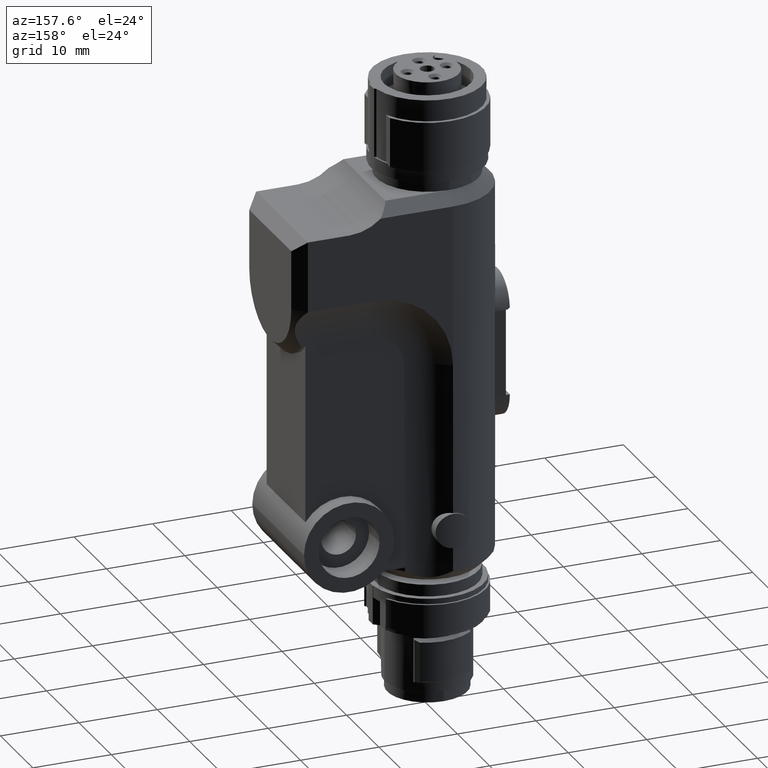
[diagram: clean part render]
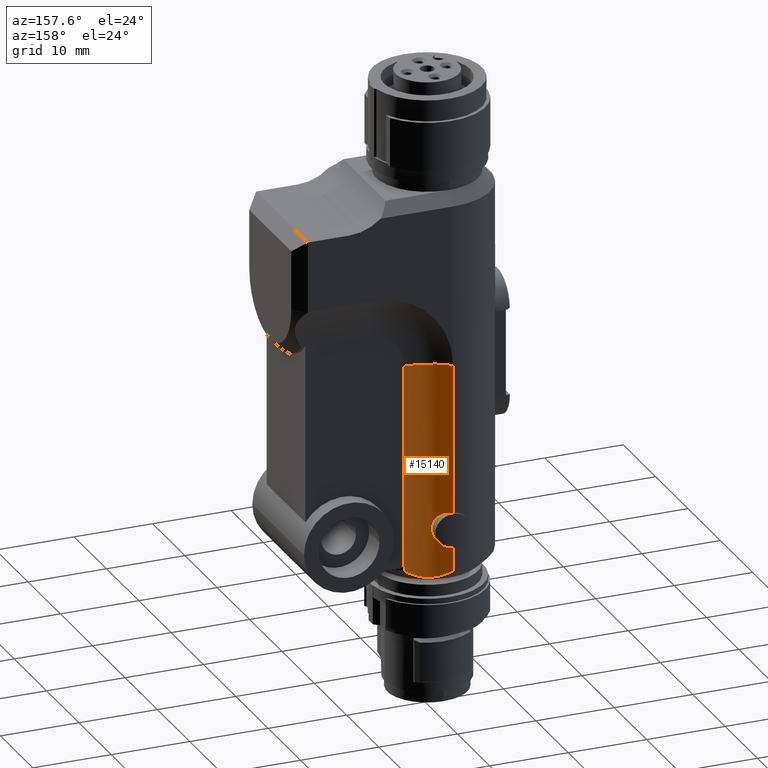
[diagram: same view with one face highlighted and labeled with its STEP entity id]
A machine part, auxiliary view. The second image highlights one B-rep face of the part: STEP entity #15140.
In plain terms, the highlighted cylindrical surface (partial cylindrical patch) has radius 8 mm, axis along (0, 0, -1).
Its self-contained STEP definition (entity closure, byte-faithful):
#7190=CARTESIAN_POINT('',(-8.,8.08514479691888E-15,1.5));
#7200=VERTEX_POINT('',#7190);
#7230=CARTESIAN_POINT('',(-8.,5.32907051820075E-15,0.));
#7240=DIRECTION('',(0.,0.,-1.));
#7250=VECTOR('',#7240,1.);
#7260=LINE('',#7230,#7250);
#7270=CARTESIAN_POINT('',(-8.,2.30290563376665E-14,4.55));
#7280=VERTEX_POINT('',#7270);
#7290=EDGE_CURVE('',#7280,#7200,#7260,.T.);
#9320=CARTESIAN_POINT('',(-8.,5.60128364936802E-15,8.95000000000001));
#9330=VERTEX_POINT('',#9320);
#9360=CARTESIAN_POINT('',(-8.,4.56777472988637E-15,28.0000000000002));
#9370=VERTEX_POINT('',#9360);
#9380=EDGE_CURVE('',#9370,#9330,#7260,.T.);
#11740=CARTESIAN_POINT('',(-14.,5.29150262212919,0.));
#11750=DIRECTION('',(0.,0.,-1.));
#11760=DIRECTION('',(-1.,0.,0.));
#11770=AXIS2_PLACEMENT_3D('',#11740,#11750,#11760);
#11780=CYLINDRICAL_SURFACE('',#11770,8.);
#11790=CARTESIAN_POINT('',(-7.99999999999999,-288.297717083381,
8.95000000000001));
#11800=CARTESIAN_POINT('',(-7.99999999999999,-286.479384099412,
8.95000000000001));
#11810=CARTESIAN_POINT('',(-7.99999999999999,-284.661051115443,
8.95000000000001));
#11820=CARTESIAN_POINT('',(-7.99999999999999,-188.561812087649,
8.95000000000001));
#11830=CARTESIAN_POINT('',(-7.99999999999999,-94.2809060438244,
8.95000000000001));
#11840=CARTESIAN_POINT('',(-7.99999999999999,0.277683059985009,
8.95000000000001));
#11850=CARTESIAN_POINT('',(-7.99999999999999,0.572961063435002,
8.89422762836984));
#11860=CARTESIAN_POINT('',(-7.99999999999999,1.1146110937259,
8.66928073440923));
#11870=CARTESIAN_POINT('',(-7.99999999999999,1.36109028303667,
8.50017955418415));
#11880=CARTESIAN_POINT('',(-7.99999999999999,1.75021595875995,
8.11105387846088));
#11890=CARTESIAN_POINT('',(-7.99999999999999,1.9192888184719,
7.86458972527087));
#11900=CARTESIAN_POINT('',(-7.99999999999999,2.1442149628536,
7.32299346353924));
#11910=CARTESIAN_POINT('',(-7.99999999999999,2.19999999999999,
7.02773502201409));
#11920=CARTESIAN_POINT('',(-7.99999999999999,2.19999999999999,
6.47226497798593));
#11930=CARTESIAN_POINT('',(-7.99999999999999,2.1442149628536,
6.17700653646077));
#11940=CARTESIAN_POINT('',(-7.99999999999999,1.9192888184719,
5.63541027472915));
#11950=CARTESIAN_POINT('',(-7.99999999999999,1.75021595875995,
5.38894612153914));
#11960=CARTESIAN_POINT('',(-7.99999999999999,1.36109028303667,
4.99982044581586));
#11970=CARTESIAN_POINT('',(-7.99999999999999,1.1146110937259,
4.83071926559079));
#11980=CARTESIAN_POINT('',(-7.99999999999999,0.572961063435002,
4.60577237163017));
#11990=CARTESIAN_POINT('',(-7.99999999999999,0.277683059985009,4.55));
#12000=CARTESIAN_POINT('',(-7.99999999999999,-94.2809060438244,4.55));
#12010=CARTESIAN_POINT('',(-8.,-188.561812087649,4.55));
#12020=CARTESIAN_POINT('',(-8.,-284.661051115443,4.55));
#12030=CARTESIAN_POINT('',(-8.,-286.479384099412,4.55));
#12040=CARTESIAN_POINT('',(-8.,-288.297717083381,4.55));
#12050=B_SPLINE_CURVE_WITH_KNOTS('',3,(#11790,#11800,#11810,#11820,
#11830,#11840,#11850,#11860,#11870,#11880,#11890,#11900,#11910,#11920,
#11930,#11940,#11950,#11960,#11970,#11980,#11990,#12000,#12010,#12020,
#12030,#12040),.UNSPECIFIED.,.F.,.F.,(4,2,2,2,2,2,2,2,2,2,2,2,4),(
-43.2553612055216,-42.4369088347306,0.,0.124988305649672,
0.249976611299327,0.374988305649668,0.499999999999993,0.625011694350334,
0.750023388700659,0.87501169435033,1.,43.4369088347325,44.2553612055235)
,.UNSPECIFIED.);
#12060=DIRECTION('',(1.,-3.0839528461811E-17,-8.91609571378369E-16));
#12070=VECTOR('',#12060,1.);
#12080=SURFACE_OF_LINEAR_EXTRUSION('',#12050,#12070);
#12090=CARTESIAN_POINT('',(-8.,2.25375273998907E-14,4.55));
#12100=CARTESIAN_POINT('',(-7.96570267655543,0.0388895093440816,4.55));
#12110=CARTESIAN_POINT('',(-7.93178182886096,0.0781148522390226,
4.55109268327636));
#12120=CARTESIAN_POINT('',(-7.89827741961416,0.117627715252378,
4.55328649431283));
#12130=CARTESIAN_POINT('',(-7.86477100793111,0.157142939805336,
4.55548043646538));
#12140=CARTESIAN_POINT('',(-7.8316822941319,0.196944101056824,
4.55877531861512));
#12150=CARTESIAN_POINT('',(-7.79903614906739,0.236994998292122,
4.56319603671458));
#12160=CARTESIAN_POINT('',(-7.76639256630321,0.27704275204978,
4.56761640784482));
#12170=CARTESIAN_POINT('',(-7.73420086808112,0.31732864025757,
4.57316102986461));
#12180=CARTESIAN_POINT('',(-7.70248033262066,0.357817788359356,
4.57987140941481));
#12190=CARTESIAN_POINT('',(-7.67075830736398,0.39830883808667,
4.58658210412671));
#12200=CARTESIAN_POINT('',(-7.63953784344485,0.43896419058889,
4.59445173705619));
#12210=CARTESIAN_POINT('',(-7.60882131702823,0.479763327203773,
4.60354013100326));
#12220=CARTESIAN_POINT('',(-7.57809767997573,0.52057190850001,
4.61263062884252));
#12230=CARTESIAN_POINT('',(-7.54785951007598,0.561550458075761,
4.6229478289965));
#12240=CARTESIAN_POINT('',(-7.51817882534997,0.602580116919865,
4.63455127394426));
#12250=CARTESIAN_POINT('',(-7.4884981487231,0.64360976456797,
4.64615471572573));
#12260=CARTESIAN_POINT('',(-7.45937475541909,0.684690788193714,
4.6590443019348));
#12270=CARTESIAN_POINT('',(-7.4308735178539,0.725697407102289,
4.67328711491379));
#12280=CARTESIAN_POINT('',(-7.40237219954843,0.766704142177274,
4.68752996824081));
#12290=CARTESIAN_POINT('',(-7.37449315333942,0.807636285381603,
4.70312608321535));
#12300=CARTESIAN_POINT('',(-7.34729421259249,0.848361198969832,
4.72015221463115));
#12310=CARTESIAN_POINT('',(-7.32008537547965,0.889100930364755,
4.73718454102447));
#12320=CARTESIAN_POINT('',(-7.29355176137925,0.92963952135484,
4.75564222733577));
#12330=CARTESIAN_POINT('',(-7.26765816133198,0.969978195802697,
4.7755543436408));
#12340=CARTESIAN_POINT('',(-7.24175228894155,1.01033598887657,
4.79547589734828));
#12350=CARTESIAN_POINT('',(-7.21645393963974,1.05054742857359,
4.81688346495379));
#12360=CARTESIAN_POINT('',(-7.19183366620314,1.09044666304521,
4.83975015322497));
#12370=CARTESIAN_POINT('',(-7.16721343361652,1.130345831316,
4.86261680355573));
#12380=CARTESIAN_POINT('',(-7.14327158761174,1.16993216915795,
4.88694184207013));
#12390=CARTESIAN_POINT('',(-7.12006787253349,1.20903597542477,
4.91269123459551));
#12400=CARTESIAN_POINT('',(-7.09686417736806,1.2481397481337,
4.93844060502342));
#12410=CARTESIAN_POINT('',(-7.07439856876529,1.28676092842887,
4.96561374135676));
#12420=CARTESIAN_POINT('',(-7.05272138464216,1.32472561294509,
4.99417612445443));
#12430=CARTESIAN_POINT('',(-7.03104423908629,1.36269022991589,
5.02273845673493));
#12440=CARTESIAN_POINT('',(-7.01015503797747,1.39999907832274,
5.05268979078422));
#12450=CARTESIAN_POINT('',(-6.9900980730455,1.43647020015405,
5.08400240017153));
#12460=CARTESIAN_POINT('',(-6.97004121869337,1.47294112090952,
5.11531483692337));
#12470=CARTESIAN_POINT('',(-6.95081554963252,1.50857617678984,
5.14798898249693));
#12480=CARTESIAN_POINT('',(-6.9324650961073,1.54317627797742,
5.18201106978745));
#12490=CARTESIAN_POINT('',(-6.92329184017325,1.56047261253949,
5.19901845947937));
#12500=CARTESIAN_POINT('',(-6.914332050765,1.57751973435806,
5.21637738163294));
#12510=CARTESIAN_POINT('',(-6.90557345046783,1.59432641138482,
5.23409626275953));
#12520=CARTESIAN_POINT('',(-6.89681601335299,1.61113085640771,
5.25181279073735));
#12530=CARTESIAN_POINT('',(-6.88826447606312,1.62768592184757,
5.269878667619));
#12540=CARTESIAN_POINT('',(-6.87991968973492,1.6439751890068,
5.28827255196541));
#12550=CARTESIAN_POINT('',(-6.87157490321043,1.6602644565492,
5.30666643674449));
#12560=CARTESIAN_POINT('',(-6.8634368654282,1.67628792590976,
5.3253883423894));
#12570=CARTESIAN_POINT('',(-6.85550635556242,1.69202897108083,
5.34441707591838));
#12580=CARTESIAN_POINT('',(-6.8475744496094,1.70777278730604,
5.36344915926627));
#12590=CARTESIAN_POINT('',(-6.83985782647782,1.72321849950369,
5.38276758619952));
#12600=CARTESIAN_POINT('',(-6.83232680135606,1.73841088148078,
5.40243216553684));
#12610=CARTESIAN_POINT('',(-6.81726716138723,1.76879078317341,
5.44175503064096));
#12620=CARTESIAN_POINT('',(-6.80298241351808,1.79809355425462,
5.48238656424065));
#12630=CARTESIAN_POINT('',(-6.78949801238218,1.82615111231675,
5.52417962421982));
#12640=CARTESIAN_POINT('',(-6.76105765167009,1.88532816170478,
5.61232663861743));
#12650=CARTESIAN_POINT('',(-6.73617947728693,1.93896304704065,
5.70563874145566));
#12660=CARTESIAN_POINT('',(-6.71506642905164,1.98548645960525,
5.80271926467771));
#12670=CARTESIAN_POINT('',(-6.70978820231418,1.99711723491441,
5.826989233071));
#12680=CARTESIAN_POINT('',(-6.70474524285132,2.00830357575111,
5.85149455129776));
#12690=CARTESIAN_POINT('',(-6.69994074862329,2.01902115900796,
5.87621330040139));
#12700=CARTESIAN_POINT('',(-6.69513610304799,2.02973907988142,
5.90093282817499));
#12710=CARTESIAN_POINT('',(-6.69057338888414,2.03998033123911,
5.92585425940167));
#12720=CARTESIAN_POINT('',(-6.68623564685021,2.04976682373383,
5.95103492196161));
#12730=CARTESIAN_POINT('',(-6.67756222042097,2.06933516643135,
6.00138430245611));
#12740=CARTESIAN_POINT('',(-6.66980479259156,2.08704703618725,
6.05265465456733));
#12750=CARTESIAN_POINT('',(-6.66293138523463,2.1028627644116,
6.10456377405981));
#12760=CARTESIAN_POINT('',(-6.65606120692909,2.1186710625803,
6.15644850721725));
#12770=CARTESIAN_POINT('',(-6.65005884882605,2.13262041077172,
6.20908029798254));
#12780=CARTESIAN_POINT('',(-6.64490379480156,2.14466932302389,
6.26226114195038));
#12790=CARTESIAN_POINT('',(-6.63974916670224,2.15671723976079,
6.3154375919662));
#12800=CARTESIAN_POINT('',(-6.63544382058718,2.16686005954307,
6.36914508993118));
#12810=CARTESIAN_POINT('',(-6.63198434310159,2.17503903663659,
6.4231338602436));
#12820=CARTESIAN_POINT('',(-6.63025449873327,2.17912877490566,
6.45012989379672));
#12830=CARTESIAN_POINT('',(-6.62873688064211,2.18272611412272,
6.47718086058878));
#12840=CARTESIAN_POINT('',(-6.62742892534272,2.18583107653285,
6.50433770783071));
#12850=CARTESIAN_POINT('',(-6.62612120570052,2.18893547951503,
6.53148966216334));
#12860=CARTESIAN_POINT('',(-6.62502468919201,2.19154385686564,
6.55872289871023));
#12870=CARTESIAN_POINT('',(-6.62414324714482,2.193642528232,
6.58600400073679));
#12880=CARTESIAN_POINT('',(-6.62238037870886,2.19783983368276,
6.64056572015329));
#12890=CARTESIAN_POINT('',(-6.62147633077129,2.19999999999999,
6.69532056166732));
#12900=CARTESIAN_POINT('',(-6.62147633077129,2.19999999999999,
6.75000000000001));
#12910=CARTESIAN_POINT('',(-6.62147633077129,2.19999999999999,
6.80467943833271));
#12920=CARTESIAN_POINT('',(-6.62238037870885,2.19783983368276,
6.85943427984672));
#12930=CARTESIAN_POINT('',(-6.62414324714482,2.193642528232,
6.91399599926322));
#12940=CARTESIAN_POINT('',(-6.62502468919201,2.19154385686564,
6.94127710128979));
#12950=CARTESIAN_POINT('',(-6.62612120570052,2.18893547951503,
6.96851033783668));
#12960=CARTESIAN_POINT('',(-6.62742892534272,2.18583107653285,
6.99566229216931));
#12970=CARTESIAN_POINT('',(-6.62873688064212,2.18272611412272,
7.02281913941124));
#12980=CARTESIAN_POINT('',(-6.63025449873327,2.17912877490566,
7.04987010620329));
#12990=CARTESIAN_POINT('',(-6.63198434310159,2.17503903663659,
7.07686613975642));
#13000=CARTESIAN_POINT('',(-6.63544382058677,2.16686005954403,
7.13085491006249));
#13010=CARTESIAN_POINT('',(-6.63974916670163,2.15671723976221,
7.18456240802755));
#13020=CARTESIAN_POINT('',(-6.64490379480156,2.14466932302389,
7.23773885804964));
#13030=CARTESIAN_POINT('',(-6.65005884882605,2.13262041077172,
7.29091970201748));
#13040=CARTESIAN_POINT('',(-6.65606120692909,2.11867106258029,
7.34355149278278));
#13050=CARTESIAN_POINT('',(-6.66293138523463,2.1028627644116,
7.39543622594021));
#13060=CARTESIAN_POINT('',(-6.66980479259156,2.08704703618724,
7.44734534543268));
#13070=CARTESIAN_POINT('',(-6.67756222042098,2.06933516643134,
7.49861569754391));
#13080=CARTESIAN_POINT('',(-6.68623564685021,2.04976682373383,
7.54896507803841));
#13090=CARTESIAN_POINT('',(-6.69057338888383,2.0399803312398,
7.57414574059657));
#13100=CARTESIAN_POINT('',(-6.69513610304765,2.02973907988218,
7.59906717182328));
#13110=CARTESIAN_POINT('',(-6.69994074862329,2.01902115900796,
7.62378669959863));
#13120=CARTESIAN_POINT('',(-6.70474524285132,2.0083035757511,
7.64850544870226));
#13130=CARTESIAN_POINT('',(-6.70978820231419,1.9971172349144,
7.67301076692901));
#13140=CARTESIAN_POINT('',(-6.71506642905164,1.98548645960524,
7.69728073532231));
#13150=CARTESIAN_POINT('',(-6.73617947728693,1.93896304704065,
7.79436125854436));
#13160=CARTESIAN_POINT('',(-6.7610576516701,1.88532816170477,
7.88767336138259));
#13170=CARTESIAN_POINT('',(-6.78949801238218,1.82615111231674,
7.9758203757802));
#13180=CARTESIAN_POINT('',(-6.80298241351681,1.79809355425725,
8.01761343575544));
#13190=CARTESIAN_POINT('',(-6.81726716138581,1.76879078317627,
8.05824496935536));
#13200=CARTESIAN_POINT('',(-6.83232680135606,1.73841088148077,
8.09756783446317));
#13210=CARTESIAN_POINT('',(-6.83985782647828,1.72321849950276,
8.11723241380169));
#13220=CARTESIAN_POINT('',(-6.84757444960989,1.70777278730507,
8.13655084073491));
#13230=CARTESIAN_POINT('',(-6.85550635556242,1.69202897108082,
8.15558292408164));
#13240=CARTESIAN_POINT('',(-6.8634368654282,1.67628792590975,
8.17461165761062));
#13250=CARTESIAN_POINT('',(-6.87157490321044,1.66026445654919,
8.19333356325553));
#13260=CARTESIAN_POINT('',(-6.87991968973493,1.64397518900679,
8.21172744803461));
#13270=CARTESIAN_POINT('',(-6.88826447606312,1.62768592184756,
8.23012133238101));
#13280=CARTESIAN_POINT('',(-6.896816013353,1.61113085640769,
8.24818720926267));
#13290=CARTESIAN_POINT('',(-6.90557345046784,1.59432641138481,
8.26590373724049));
#13300=CARTESIAN_POINT('',(-6.91433205076501,1.57751973435805,
8.28362261836707));
#13310=CARTESIAN_POINT('',(-6.92329184017326,1.56047261253948,
8.30098154052065));
#13320=CARTESIAN_POINT('',(-6.93246509610731,1.54317627797741,
8.31798893021256));
#13330=CARTESIAN_POINT('',(-6.95081554963252,1.50857617678983,
8.35201101750309));
#13340=CARTESIAN_POINT('',(-6.97004121869337,1.47294112090951,
8.38468516307665));
#13350=CARTESIAN_POINT('',(-6.9900980730455,1.43647020015404,
8.41599759982849));
#13360=CARTESIAN_POINT('',(-7.01015503797748,1.39999907832273,
8.4473102092158));
#13370=CARTESIAN_POINT('',(-7.0310442390863,1.36269022991588,
8.47726154326508));
#13380=CARTESIAN_POINT('',(-7.05272138464216,1.32472561294507,
8.50582387554558));
#13390=CARTESIAN_POINT('',(-7.0743985687653,1.28676092842886,
8.53438625864326));
#13400=CARTESIAN_POINT('',(-7.09686417736807,1.24813974813369,
8.5615593949766));
#13410=CARTESIAN_POINT('',(-7.12006787253349,1.20903597542476,
8.58730876540451));
#13420=CARTESIAN_POINT('',(-7.14327158761175,1.16993216915794,
8.61305815792989));
#13430=CARTESIAN_POINT('',(-7.16721343361653,1.13034583131599,
8.63738319644428));
#13440=CARTESIAN_POINT('',(-7.19183366620315,1.0904466630452,
8.66024984677504));
#13450=CARTESIAN_POINT('',(-7.21645393963975,1.05054742857357,
8.68311653504623));
#13460=CARTESIAN_POINT('',(-7.24175228894155,1.01033598887656,
8.70452410265174));
#13470=CARTESIAN_POINT('',(-7.26765816133199,0.969978195802689,
8.72444565635921));
#13480=CARTESIAN_POINT('',(-7.29355176138901,0.929639521339645,
8.74435777267174));
#13490=CARTESIAN_POINT('',(-7.32008537548991,0.889100930349393,
8.76281545898197));
#13500=CARTESIAN_POINT('',(-7.34729421259249,0.848361198969823,
8.77984778536886));
#13510=CARTESIAN_POINT('',(-7.37449315333942,0.807636285381591,
8.79687391678467));
#13520=CARTESIAN_POINT('',(-7.40237219954843,0.766704142177264,
8.8124700317592));
#13530=CARTESIAN_POINT('',(-7.43087351785391,0.725697407102278,
8.82671288508622));
#13540=CARTESIAN_POINT('',(-7.4593747554191,0.684690788193706,
8.84095569806521));
#13550=CARTESIAN_POINT('',(-7.48849814872311,0.643609764567952,
8.85384528427428));
#13560=CARTESIAN_POINT('',(-7.51817882534998,0.602580116919855,
8.86544872605574));
#13570=CARTESIAN_POINT('',(-7.54785951007599,0.561550458075745,
8.87705217100351));
#13580=CARTESIAN_POINT('',(-7.57809767997574,0.520571908500001,
8.88736937115748));
#13590=CARTESIAN_POINT('',(-7.60882131702824,0.479763327203762,
8.89645986899675));
#13600=CARTESIAN_POINT('',(-7.63953784344486,0.438964190588883,
8.90554826294382));
#13610=CARTESIAN_POINT('',(-7.67075830736399,0.398308838086653,
8.91341789587329));
#13620=CARTESIAN_POINT('',(-7.70248033262067,0.357817788359346,
8.9201285905852));
#13630=CARTESIAN_POINT('',(-7.73420086808113,0.317328640257564,
8.92683897013539));
#13640=CARTESIAN_POINT('',(-7.76639256630322,0.277042752049768,
8.93238359215518));
#13650=CARTESIAN_POINT('',(-7.7990361490674,0.23699499829211,
8.93680396328542));
#13660=CARTESIAN_POINT('',(-7.83168229413191,0.196944101056812,
8.94122468138488));
#13670=CARTESIAN_POINT('',(-7.86477100793113,0.157142939805312,
8.94451956353463));
#13680=CARTESIAN_POINT('',(-7.89827741961417,0.117627715252363,
8.94671350568718));
#13690=CARTESIAN_POINT('',(-7.93178182886097,0.0781148522390084,
8.94890731672365));
#13700=CARTESIAN_POINT('',(-7.96570267655544,0.0388895093440661,
8.95000000000001));
#13710=CARTESIAN_POINT('',(-8.,8.2156503822269E-15,8.95000000000001));
#13720=B_SPLINE_CURVE_WITH_KNOTS('',3,(#12090,#12100,#12110,#12120,
#12130,#12140,#12150,#12160,#12170,#12180,#12190,#12200,#12210,#12220,
#12230,#12240,#12250,#12260,#12270,#12280,#12290,#12300,#12310,#12320,
#12330,#12340,#12350,#12360,#12370,#12380,#12390,#12400,#12410,#12420,
#12430,#12440,#12450,#12460,#12470,#12480,#12490,#12500,#12510,#12520,
#12530,#12540,#12550,#12560,#12570,#12580,#12590,#12600,#12610,#12620,
#12630,#12640,#12650,#12660,#12670,#12680,#12690,#12700,#12710,#12720,
#12730,#12740,#12750,#12760,#12770,#12780,#12790,#12800,#12810,#12820,
#12830,#12840,#12850,#12860,#12870,#12880,#12890,#12900,#12910,#12920,
#12930,#12940,#12950,#12960,#12970,#12980,#12990,#13000,#13010,#13020,
#13030,#13040,#13050,#13060,#13070,#13080,#13090,#13100,#13110,#13120,
#13130,#13140,#13150,#13160,#13170,#13180,#13190,#13200,#13210,#13220,
#13230,#13240,#13250,#13260,#13270,#13280,#13290,#13300,#13310,#13320,
#13330,#13340,#13350,#13360,#13370,#13380,#13390,#13400,#13410,#13420,
#13430,#13440,#13450,#13460,#13470,#13480,#13490,#13500,#13510,#13520,
#13530,#13540,#13550,#13560,#13570,#13580,#13590,#13600,#13610,#13620,
#13630,#13640,#13650,#13660,#13670,#13680,#13690,#13700,#13710),
.UNSPECIFIED.,.F.,.F.,(4,3,3,3,3,3,3,3,3,3,3,3,3,3,3,3,3,3,3,3,3,3,3,3,3
,3,3,3,3,3,3,3,3,3,3,3,3,3,3,3,3,3,3,3,3,3,3,3,3,3,3,3,3,3,4),(0.,
0.155560075269583,0.311123780085613,0.466699993431788,0.622289203733837,
0.778068868336787,0.933911159797859,1.08958833375539,1.24518275026743,
1.40135885201395,1.55801888635527,1.71476099521893,1.87124293491366,
2.02720361740525,2.10500498103816,2.18284364642119,2.26067706383786,
2.33849076070351,2.49458547783768,2.8243323858957,2.90652531730662,
2.98857635897961,3.15273544417975,3.31691616019279,3.48118164430166,
3.56323141159444,3.64534173553406,3.80952998533529,3.97371823513652,
4.05582855907614,4.13787832636891,4.30214381047779,4.46632452649084,
4.63048361169098,4.71253465336397,4.79472758477489,5.12447449283291,
5.28056920996708,5.35838290683273,5.43621632424941,5.51405498963245,
5.59185635326536,5.74781703575695,5.90429897545168,6.06104108431534,
6.21770111865667,6.37387722040318,6.52947163691523,6.68514881087276,
6.84099110233382,6.99677076693679,7.15235997723884,7.30793619058501,
7.46349989540104,7.6190599706706),.UNSPECIFIED.);
#13730=SURFACE_CURVE('',#13720,(#11780,#12080),.CURVE_3D.);
#13740=EDGE_CURVE('',#7280,#9330,#13730,.T.);
#13750=ORIENTED_EDGE('',*,*,#13740,.T.);
#13760=ORIENTED_EDGE('',*,*,#7290,.F.);
#13770=CARTESIAN_POINT('',(7.61693287089118E-16,7.105427357601E-15,1.5))
;
#13780=DIRECTION('',(2.52970265222012E-16,0.,1.));
#13790=DIRECTION('',(1.,0.,-2.52970265222012E-16));
#13800=AXIS2_PLACEMENT_3D('',#13770,#13780,#13790);
#13810=CONICAL_SURFACE('',#13800,8.,0.785398163397448);
#13820=CARTESIAN_POINT('',(-8.,5.72739021824194E-15,1.5));
#13830=CARTESIAN_POINT('',(-7.96410206669721,0.0407044303287358,
1.46410206669721));
#13840=CARTESIAN_POINT('',(-7.92839924175299,0.0820225226208609,
1.42870963334482));
#13850=CARTESIAN_POINT('',(-7.89290958233148,0.12396484960915,
1.39388300893792));
#13860=CARTESIAN_POINT('',(-7.8574199214178,0.165907178360932,
1.35905638306671));
#13870=CARTESIAN_POINT('',(-7.82214335488641,0.208473797361093,
1.32479548294923));
#13880=CARTESIAN_POINT('',(-7.78709730604285,0.251677216877538,
1.29116331976651));
#13890=CARTESIAN_POINT('',(-7.75205126328362,0.294880628893448,
1.25753116242265));
#13900=CARTESIAN_POINT('',(-7.71723564973883,0.338720921531129,
1.22452764439301));
#13910=CARTESIAN_POINT('',(-7.6826676061991,0.383212550603892,
1.19221901705102));
#13920=CARTESIAN_POINT('',(-7.64809957885258,0.427704158834798,
1.15991040484383));
#13930=CARTESIAN_POINT('',(-7.61377901458603,0.472847213315825,
1.12829657298626));
#13940=CARTESIAN_POINT('',(-7.57972321579006,0.518657976204203,
1.09744760589153));
#13950=CARTESIAN_POINT('',(-7.54566744591511,0.564468700188939,
1.06659866499452));
#13960=CARTESIAN_POINT('',(-7.5118763162811,0.61094727666974,
1.03651446984425));
#13970=CARTESIAN_POINT('',(-7.47836782959569,0.65811144136523,
1.00726954783389));
#13980=CARTESIAN_POINT('',(-7.44485731579755,0.705278459280541,
0.9780228566373));
#13990=CARTESIAN_POINT('',(-7.41164536772475,0.753107034792666,
0.949628422345238));
#14000=CARTESIAN_POINT('',(-7.3786750100924,0.801730314090409,
0.922103232983273));
#14010=CARTESIAN_POINT('',(-7.34571005091874,0.850345631971193,
0.894582550505923));
#14020=CARTESIAN_POINT('',(-7.31301622512814,0.89971412583298,
0.867956975316604));
#14030=CARTESIAN_POINT('',(-7.28064316357945,0.949815887132247,
0.842337168424302));
#14040=CARTESIAN_POINT('',(-7.24827010448691,0.999917644630298,
0.816717363475771));
#14050=CARTESIAN_POINT('',(-7.21621790608939,1.05075253923477,
0.792103485069121));
#14060=CARTESIAN_POINT('',(-7.18453482592318,1.10229810803037,
0.768603840069305));
#14070=CARTESIAN_POINT('',(-7.1211559648346,1.20540990862833,
0.721595129796793));
#14080=CARTESIAN_POINT('',(-7.05930835544935,1.31127388298865,
0.679083714058225));
#14090=CARTESIAN_POINT('',(-6.99921085342267,1.41994591646509,
0.641792420416362));
#14100=CARTESIAN_POINT('',(-6.9691461035657,1.47431086330542,
0.623136846101685));
#14110=CARTESIAN_POINT('',(-6.939495860216,1.52942294213745,
0.605774380589383));
#14120=CARTESIAN_POINT('',(-6.91033369343176,1.58520640332651,
0.589823065191795));
#14130=CARTESIAN_POINT('',(-6.88117153535106,1.64098984786682,
0.573871754554922));
#14140=CARTESIAN_POINT('',(-6.8524981693361,1.69744343025899,
0.559332205759282));
#14150=CARTESIAN_POINT('',(-6.82438256141844,1.75448207156348,
0.546304328087861));
#14160=CARTESIAN_POINT('',(-6.79626689343016,1.8115208347343,
0.533276422581632));
#14170=CARTESIAN_POINT('',(-6.76870980882053,1.86914303288345,
0.521760725845155));
#14180=CARTESIAN_POINT('',(-6.74177290891049,1.92725835421782,
0.511834761260491));
#14190=CARTESIAN_POINT('',(-6.71484247471478,1.98535972602323,
0.501911179223619));
#14200=CARTESIAN_POINT('',(-6.68849583296876,2.04403208992537,
0.493563512535875));
#14210=CARTESIAN_POINT('',(-6.66279674439707,2.10317259122432,
0.486858765255289));
#14220=CARTESIAN_POINT('',(-6.63709596315496,2.16231698781227,
0.480153576366536));
#14230=CARTESIAN_POINT('',(-6.61205960585843,2.2218890719811,
0.475094558073922));
#14240=CARTESIAN_POINT('',(-6.58770603806595,2.28186838822701,
0.471713862828867));
#14250=CARTESIAN_POINT('',(-6.56335139197452,2.34185036016732,
0.468333017897322));
#14260=CARTESIAN_POINT('',(-6.53970243942642,2.40218410801377,
0.46663443254683));
#14270=CARTESIAN_POINT('',(-6.51678425174998,2.46281351493788,
0.46662955762807));
#14280=CARTESIAN_POINT('',(-6.49386388033894,2.52344869886911,
0.46662468224481));
#14290=CARTESIAN_POINT('',(-6.4716898448202,2.58433874005042,
0.468313817250641));
#14300=CARTESIAN_POINT('',(-6.45027951276266,2.64542617489855,
0.471684548199522));
#14310=CARTESIAN_POINT('',(-6.42886724174378,2.70651914194366,
0.475055584408357));
#14320=CARTESIAN_POINT('',(-6.40823611475259,2.7677596366264,
0.48010535598836));
#14330=CARTESIAN_POINT('',(-6.38838951291377,2.8291083009696,
0.486800007680294));
#14340=CARTESIAN_POINT('',(-6.36854313288212,2.89045627967534,
0.493494584552278));
#14350=CARTESIAN_POINT('',(-6.3494889494157,2.95189119291827,
0.501833248995333));
#14360=CARTESIAN_POINT('',(-6.33125209107613,3.01327842127105,
0.511747277594473));
#14370=CARTESIAN_POINT('',(-6.31301261372562,3.07467446549659,
0.521662729955804));
#14380=CARTESIAN_POINT('',(-6.2955682899759,3.13609766858084,
0.53316567557126));
#14390=CARTESIAN_POINT('',(-6.27893374412793,3.1974310205707,
0.546174429742339));
#14400=CARTESIAN_POINT('',(-6.24564902065462,3.32015536058764,
0.572204162641207));
#14410=CARTESIAN_POINT('',(-6.21567418007353,3.44225765683492,
0.604202798516999));
#14420=CARTESIAN_POINT('',(-6.18883944198332,3.56356433130844,
0.641479145248703));
#14430=CARTESIAN_POINT('',(-6.17541827429885,3.6242348403286,
0.660122595334525));
#14440=CARTESIAN_POINT('',(-6.16277843479283,3.68472628117394,
0.680092130688335));
#14450=CARTESIAN_POINT('',(-6.15090558738149,3.74498495271804,
0.701288207047774));
#14460=CARTESIAN_POINT('',(-6.13903275017531,3.80524357246757,
0.722484265188396));
#14470=CARTESIAN_POINT('',(-6.12792697853662,3.86526900765355,
0.744906613799509));
#14480=CARTESIAN_POINT('',(-6.11757068222246,3.92500781780645,
0.768449451005999));
#14490=CARTESIAN_POINT('',(-6.10721438787207,3.98474661663162,
0.791992283748277));
#14500=CARTESIAN_POINT('',(-6.09760760529449,4.04419850275096,
0.81665538518572));
#14510=CARTESIAN_POINT('',(-6.08872949336202,4.10331115153196,
0.842328598586623));
#14520=CARTESIAN_POINT('',(-6.07985137922011,4.16242381502395,
0.868001818376653));
#14530=CARTESIAN_POINT('',(-6.07170194880319,4.22119705638548,
0.894684971160126));
#14540=CARTESIAN_POINT('',(-6.06425727291068,4.27958001172416,
0.922265243764799));
#14550=CARTESIAN_POINT('',(-6.0568125931952,4.33796299704353,
0.949845530532436));
#14560=CARTESIAN_POINT('',(-6.0500726682241,4.39595558733358,
0.978322800150361));
#14570=CARTESIAN_POINT('',(-6.04401070510655,4.45350838614571,
1.00758298981162));
#14580=CARTESIAN_POINT('',(-6.0379505482363,4.51104403629074,
1.03683446098721));
#14590=CARTESIAN_POINT('',(-6.03256101860198,4.56819725430387,
1.06689599000467));
#14600=CARTESIAN_POINT('',(-6.02780845434912,4.62504785288182,
1.09773271468333));
#14610=CARTESIAN_POINT('',(-6.0230564031192,4.68189231463345,
1.12856611064377));
#14620=CARTESIAN_POINT('',(-6.01894399012063,4.73840740074541,
1.16016086913247));
#14630=CARTESIAN_POINT('',(-6.01544719175321,4.7945957371716,
1.19244780285675));
#14640=CARTESIAN_POINT('',(-6.01195039115163,4.85078410949739,
1.22473475720965));
#14650=CARTESIAN_POINT('',(-6.00906921148045,4.90664589788557,
1.25771400540506));
#14660=CARTESIAN_POINT('',(-6.00678110214714,4.96218263942553,
1.29132053994239));
#14670=CARTESIAN_POINT('',(-6.00449299210999,5.01771939804926,
1.32492708481748));
#14680=CARTESIAN_POINT('',(-6.00279796515409,5.07293123948109,
1.35916102175182));
#14690=CARTESIAN_POINT('',(-6.00167471304066,5.12781815742127,
1.39396088264509));
#14700=CARTESIAN_POINT('',(-6.00055146086099,5.18270507859823,
1.42876074559057));
#14710=CARTESIAN_POINT('',(-6.,5.23726717448766,1.46412662332406));
#14720=CARTESIAN_POINT('',(-6.,5.29150262212919,1.5));
#14730=B_SPLINE_CURVE_WITH_KNOTS('',3,(#13820,#13830,#13840,#13850,
#13860,#13870,#13880,#13890,#13900,#13910,#13920,#13930,#13940,#13950,
#13960,#13970,#13980,#13990,#14000,#14010,#14020,#14030,#14040,#14050,
#14060,#14070,#14080,#14090,#14100,#14110,#14120,#14130,#14140,#14150,
#14160,#14170,#14180,#14190,#14200,#14210,#14220,#14230,#14240,#14250,
#14260,#14270,#14280,#14290,#14300,#14310,#14320,#14330,#14340,#14350,
#14360,#14370,#14380,#14390,#14400,#14410,#14420,#14430,#14440,#14450,
#14460,#14470,#14480,#14490,#14500,#14510,#14520,#14530,#14540,#14550,
#14560,#14570,#14580,#14590,#14600,#14610,#14620,#14630,#14640,#14650,
#14660,#14670,#14680,#14690,#14700,#14710,#14720),.UNSPECIFIED.,.F.,.F.,
(4,3,3,3,3,3,3,3,3,3,3,3,3,3,3,3,3,3,3,3,3,3,3,3,3,3,3,3,3,3,4),(0.,
0.195188606983974,0.390279432757332,0.58521482896295,0.779965254354914,
0.974530901724284,1.16901063706763,1.36370741116983,1.55846248008233,
1.94760034942322,2.1423273275449,2.33711989622456,2.53173046494902,
2.72619530425316,2.92064411735206,3.11508510544907,3.30952333629801,
3.50396649838287,3.69842833389841,3.89296298348065,4.28204020904119,
4.47681276609432,4.67184131875322,4.86700114885682,5.06210146850888,
5.25689410853825,5.45136465061439,5.64597534096816,5.840754721473,
6.03568712259809,6.23073027581124),.UNSPECIFIED.);
#14740=SURFACE_CURVE('',#14730,(#13810,#11780),.CURVE_3D.);
#14750=CARTESIAN_POINT('',(-6.,5.29150262212919,1.5));
#14760=VERTEX_POINT('',#14750);
#14770=EDGE_CURVE('',#7200,#14760,#14740,.T.);
#14780=ORIENTED_EDGE('',*,*,#14770,.F.);
#14790=CARTESIAN_POINT('',(-6.,5.29150262212919,2.00000000000001));
#14800=DIRECTION('',(2.52970265222012E-16,6.19598451167187E-32,1.));
#14810=VECTOR('',#14800,1.);
#14820=LINE('',#14790,#14810);
#14830=CARTESIAN_POINT('',(-6.,5.29150262212919,2.00000000000001));
#14840=VERTEX_POINT('',#14830);
#14850=EDGE_CURVE('',#14760,#14840,#14820,.T.);
#14860=ORIENTED_EDGE('',*,*,#14850,.F.);
#14870=CARTESIAN_POINT('',(-14.,5.29150262212919,2.00000000000001));
#14880=DIRECTION('',(0.,0.,1.));
#14890=DIRECTION('',(-1.,0.,0.));
#14900=AXIS2_PLACEMENT_3D('',#14870,#14880,#14890);
#14910=CIRCLE('',#14900,8.);
#14920=CARTESIAN_POINT('',(-6.001,5.41798977562688,2.));
#14930=VERTEX_POINT('',#14920);
#14940=EDGE_CURVE('',#14840,#14930,#14910,.T.);
#14950=ORIENTED_EDGE('',*,*,#14940,.F.);
#14960=CARTESIAN_POINT('',(-6.001,5.41798977562688,0.));
#14970=DIRECTION('',(0.,0.,-1.));
#14980=VECTOR('',#14970,1.);
#14990=LINE('',#14960,#14980);
#15000=CARTESIAN_POINT('',(-6.001,5.41798977562688,28.));
#15010=VERTEX_POINT('',#15000);
#15020=EDGE_CURVE('',#15010,#14930,#14990,.T.);
#15030=ORIENTED_EDGE('',*,*,#15020,.T.);
#15040=CARTESIAN_POINT('',(-14.,5.2915026221292,28.));
#15050=DIRECTION('',(2.52970265222012E-16,6.72936758894445E-17,1.));
#15060=DIRECTION('',(-4.76014766725616E-31,-1.,6.72936758894445E-17));
#15070=AXIS2_PLACEMENT_3D('',#15040,#15050,#15060);
#15080=CIRCLE('',#15070,8.);
#15090=EDGE_CURVE('',#9370,#15010,#15080,.T.);
#15100=ORIENTED_EDGE('',*,*,#15090,.T.);
#15110=ORIENTED_EDGE('',*,*,#9380,.F.);
#15120=EDGE_LOOP('',(#15110,#15100,#15030,#14950,#14860,#14780,#13760,
#13750));
#15130=FACE_OUTER_BOUND('',#15120,.T.);
#15140=ADVANCED_FACE('',(#15130),#11780,.F.);